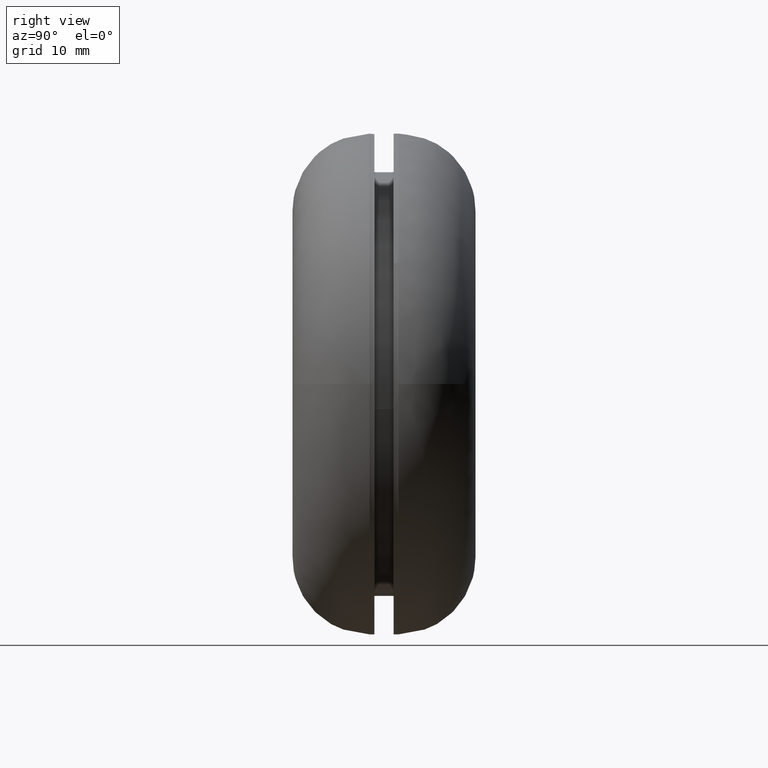
[diagram: clean part render]
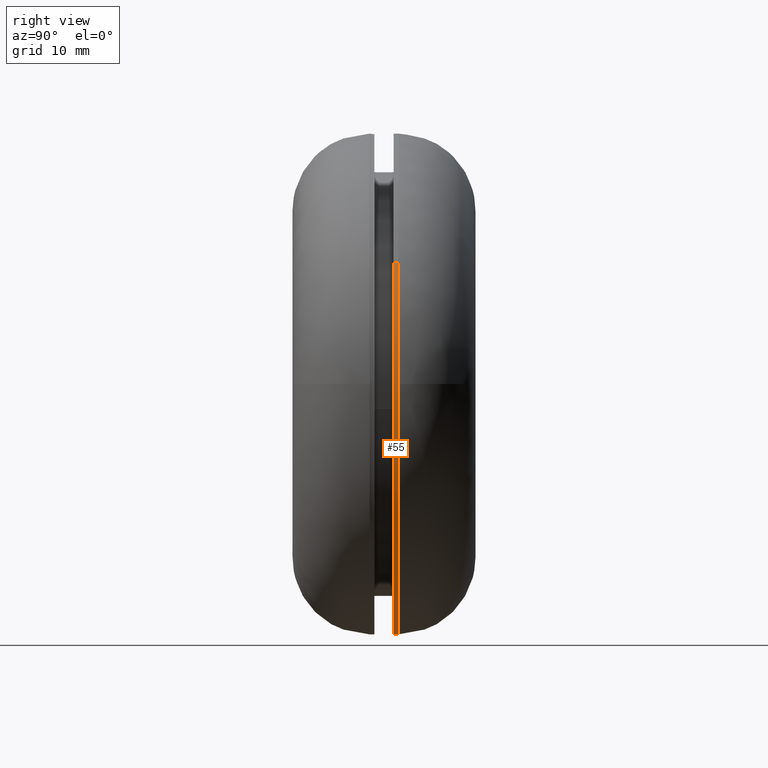
[diagram: same view with one face highlighted and labeled with its STEP entity id]
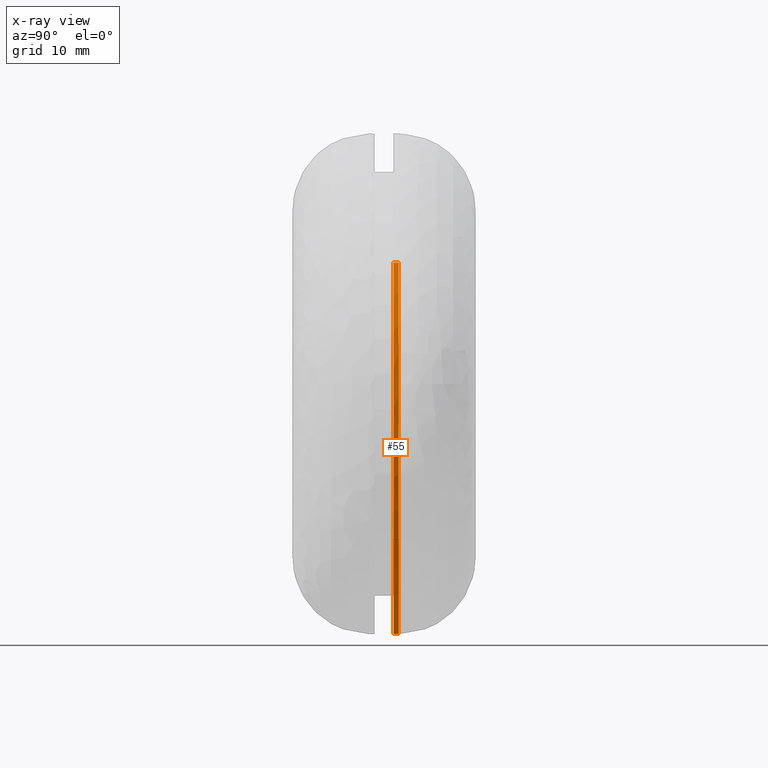
[diagram: x-ray of the same camera — body ghosted, the highlighted face saturated]
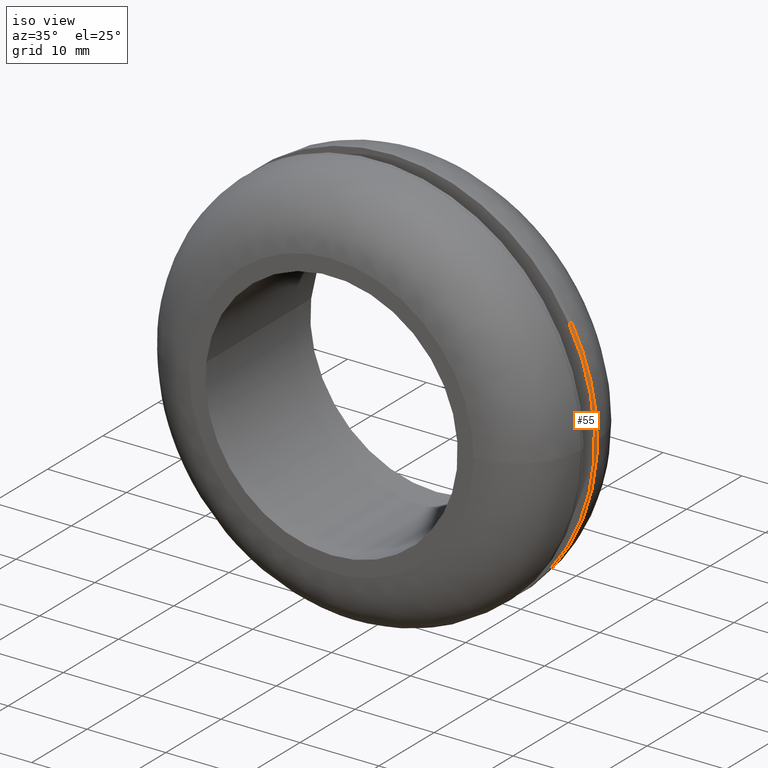
[diagram: same view with one face highlighted and labeled with its STEP entity id]
A machine part, right view. The second image highlights one B-rep face of the part: STEP entity #55.
The next image is the same camera in x-ray: the body ghosted, the highlighted face saturated — about 0% of this face is hidden behind the body in this view.
A second angle (iso view) of the same face is appended — the face is thin or edge-on in the first view.
In plain terms, the highlighted cylindrical surface (partial cylindrical patch) has radius 26 mm, axis along (0, 1, -0).
Its self-contained STEP definition (entity closure, byte-faithful):
#55=ADVANCED_FACE('',(#211),#210,.T.);
#210=CYLINDRICAL_SURFACE('',#386,2.60000000000E+001);
#211=FACE_OUTER_BOUND('',#387,.T.);
#383=CARTESIAN_POINT('',(-3.85166903468E-015,1.10125000000E+001,-7.29355321586E-015));
#384=DIRECTION('',(5.52561966324E-016,1.00000000000E+000,-7.16243600734E-016));
#385=DIRECTION('',(-8.74946427443E-001,1.36642833800E-016,-4.84219732254E-001));
#386=AXIS2_PLACEMENT_3D('',#383,#384,#385);
#387=EDGE_LOOP('',(#484,#485,#486,#487,#488,#489,#490,#491));
#484=ORIENTED_EDGE('',*,*,#498,.F.);
#485=ORIENTED_EDGE('',*,*,#500,.F.);
#486=ORIENTED_EDGE('',*,*,#542,.T.);
#487=ORIENTED_EDGE('',*,*,#538,.T.);
#488=ORIENTED_EDGE('',*,*,#537,.T.);
#489=ORIENTED_EDGE('',*,*,#536,.T.);
#490=ORIENTED_EDGE('',*,*,#534,.T.);
#491=ORIENTED_EDGE('',*,*,#543,.F.);
#498=EDGE_CURVE('',#586,#587,#588,.T.);
#500=EDGE_CURVE('',#594,#586,#601,.T.);
#534=EDGE_CURVE('',#832,#825,#833,.T.);
#536=EDGE_CURVE('',#845,#832,#846,.T.);
#537=EDGE_CURVE('',#852,#845,#853,.T.);
#538=EDGE_CURVE('',#859,#852,#860,.T.);
#542=EDGE_CURVE('',#594,#859,#884,.T.);
#543=EDGE_CURVE('',#587,#825,#890,.T.);
#586=VERTEX_POINT('',#926);
#587=VERTEX_POINT('',#927);
#588=CIRCLE('',#931,2.60000000000E+001);
#594=VERTEX_POINT('',#932);
#601=CIRCLE('',#940,2.60000000000E+001);
#825=VERTEX_POINT('',#1090);
#832=VERTEX_POINT('',#1095);
#833=CIRCLE('',#1099,2.60000000000E+001);
#845=VERTEX_POINT('',#1105);
#846=CIRCLE('',#1109,2.60000000000E+001);
#852=VERTEX_POINT('',#1110);
#853=CIRCLE('',#1114,2.60000000000E+001);
#859=VERTEX_POINT('',#1115);
#860=CIRCLE('',#1119,2.60000000000E+001);
#884=(BOUNDED_CURVE() B_SPLINE_CURVE(1,(#1128,#1129),.UNSPECIFIED.,.F.,.F.) B_SPLINE_CURVE_WITH_KNOTS((2,2),(8.33332538610E-002,9.16657924049E-001),.UNSPECIFIED.) CURVE() GEOMETRIC_REPRESENTATION_ITEM() RATIONAL_B_SPLINE_CURVE((1.00000000000E+000,1.00000000000E+000)) REPRESENTATION_ITEM('') );
#890=(BOUNDED_CURVE() B_SPLINE_CURVE(1,(#1130,#1131),.UNSPECIFIED.,.F.,.F.) B_SPLINE_CURVE_WITH_KNOTS((2,2),(8.33333333334E-002,9.16659795844E-001),.UNSPECIFIED.) CURVE() GEOMETRIC_REPRESENTATION_ITEM() RATIONAL_B_SPLINE_CURVE((7.50000000000E-001,7.50000000000E-001)) REPRESENTATION_ITEM('') );
#926=CARTESIAN_POINT('',(-1.02894038775E-014,1.05000000000E+001,-2.60000000000E+001));
#927=CARTESIAN_POINT('',(2.27478691160E+001,1.05000000000E+001,1.25910464491E+001));
#928=CARTESIAN_POINT('',(-3.55271367880E-015,1.05000000000E+001,-1.06581410364E-014));
#929=DIRECTION('',(0.00000000000E+000,-1.00000000000E+000,0.00000000000E+000));
#930=DIRECTION('',(-1.36642833800E-016,-0.00000000000E+000,-1.00000000000E+000));
#931=AXIS2_PLACEMENT_3D('',#928,#929,#930);
#932=CARTESIAN_POINT('',(-2.27486056636E+001,1.05000000000E+001,-1.25897156586E+001));
#937=CARTESIAN_POINT('',(-3.55271367880E-015,1.05000000000E+001,-1.06581410364E-014));
#938=DIRECTION('',(0.00000000000E+000,-1.00000000000E+000,0.00000000000E+000));
#939=DIRECTION('',(-1.36642833800E-016,-0.00000000000E+000,-1.00000000000E+000));
#940=AXIS2_PLACEMENT_3D('',#937,#938,#939);
#1090=CARTESIAN_POINT('',(2.27471139903E+001,1.09999950306E+001,1.25924106155E+001));
#1095=CARTESIAN_POINT('',(2.60000000000E+001,1.09999927877E+001,4.35062045663E-006));
#1096=CARTESIAN_POINT('',(-4.58300064565E-013,1.09999962679E+001,4.43733938482E-012));
#1097=DIRECTION('',(-1.33857194641E-007,-1.00000000000E+000,1.43540724722E-007));
#1098=DIRECTION('',(-8.74946516989E-001,4.76126581580E-008,-4.84219570451E-001));
#1099=AXIS2_PLACEMENT_3D('',#1096,#1097,#1098);
#1105=CARTESIAN_POINT('',(2.59367077300E+001,1.09999925359E+001,-1.81306153443E+000));
#1106=CARTESIAN_POINT('',(-4.58300064565E-013,1.09999962679E+001,4.43733938482E-012));
#1107=DIRECTION('',(-1.33857194641E-007,-1.00000000000E+000,1.43540724722E-007));
#1108=DIRECTION('',(-8.74946516989E-001,4.76126581580E-008,-4.84219570451E-001));
#1109=AXIS2_PLACEMENT_3D('',#1106,#1107,#1108);
#1110=CARTESIAN_POINT('',(0.00000000000E+000,1.10000000000E+001,-2.60000000000E+001));
#1111=CARTESIAN_POINT('',(-2.05524486319E-012,1.09999962679E+001,-5.47295542219E-012));
#1112=DIRECTION('',(-1.53925160524E-007,-1.00000000000E+000,-1.43540900260E-007));
#1113=DIRECTION('',(-7.90478793533E-014,-1.43540900260E-007,1.00000000000E+000));
#1114=AXIS2_PLACEMENT_3D('',#1111,#1112,#1113);
#1115=CARTESIAN_POINT('',(-2.27486041857E+001,1.09999947624E+001,-1.25897183289E+001));
#1116=CARTESIAN_POINT('',(2.48157050464E-012,1.09999962041E+001,-1.04432018588E-011));
#1117=DIRECTION('',(1.44173882931E-007,-1.00000000000E+000,-1.45997022441E-007));
#1118=DIRECTION('',(9.99921052629E-001,1.45997007304E-007,-1.25653694236E-002));
#1119=AXIS2_PLACEMENT_3D('',#1116,#1117,#1118);
#1128=CARTESIAN_POINT('',(-2.27486071135E+001,1.04999999523E+001,-1.25897130386E+001));
#1129=CARTESIAN_POINT('',(-2.27486071135E+001,1.09999947544E+001,-1.25897130386E+001));
#1130=CARTESIAN_POINT('',(2.27486071135E+001,1.05000000000E+001,1.25897130386E+001));
#1131=CARTESIAN_POINT('',(2.27486071135E+001,1.09999958775E+001,1.25897130386E+001));